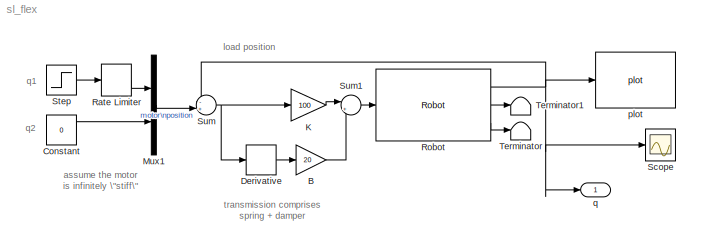
MODEL sl_flex
KIND model
CONFIG PreLoadFcn = twolink
BLOCK [Gain] B
  Gain = 20
  SID = 1
BLOCK [Constant] Constant
  SID = 3
  Value = 0
BLOCK [Derivative] Derivative
  SID = 4
BLOCK [Gain] K
  Gain = 100
  SID = 5
BLOCK [Mux] Mux1
  DisplayOption = bar
  Inputs = 2
  Ports = [2, 1]
  SID = 8
BLOCK [RateLimiter] Rate Limiter
  FallingSlewLimit = -50
  RisingSlewLimit = 50
  SID = 9
BLOCK [Reference] Robot  REF=roblocks/Dynamics/Robot  (lib defined in mdl_2a292b13c81b, mdl_69400f8cfe22, +12 more)
  FunctionWithSeparateData = off
  GeneratePreprocessorConditionals = off
  Ports = [1, 3]
  RTWMemSecDataConstants = Inherit from model
  RTWMemSecDataInternal = Inherit from model
  RTWMemSecDataParameters = Inherit from model
  RTWMemSecFuncExecute = Inherit from model
  RTWMemSecFuncInitTerm = Inherit from model
  SID = 10
  ShowPortLabels = FromPortIcon
  SourceBlock = roblocks/Dynamics/Robot
  SystemSampleTime = -1
  q0 = [0 0]
  robot = twolink
BLOCK [Scope] Scope
  DataFormat = StructureWithTime
  Floating = off
  NumInputPorts = 1
  Ports = [1]
  SID = 11
  SampleTime = 0
  YMax = 1.5
  YMin = -0.5
BLOCK [Step] Step
  SID = 12
  SampleTime = 0
BLOCK [Sum] Sum
  IconShape = round
  Inputs = -+|
  Ports = [2, 1]
  SID = 13
BLOCK [Sum] Sum1
  IconShape = round
  Inputs = |++
  Ports = [2, 1]
  SID = 14
BLOCK [Terminator] Terminator
  SID = 15
BLOCK [Terminator] Terminator1
  SID = 20
BLOCK [Reference] plot  REF=roblocks/Robot Graphics/plot  (lib defined in mdl_2a292b13c81b, mdl_69400f8cfe22, +12 more)
  FunctionWithSeparateData = off
  GeneratePreprocessorConditionals = off
  Ports = [1]
  RTWMemSecDataConstants = Inherit from model
  RTWMemSecDataInternal = Inherit from model
  RTWMemSecDataParameters = Inherit from model
  RTWMemSecFuncExecute = Inherit from model
  RTWMemSecFuncInitTerm = Inherit from model
  SID = 18
  ShowPortLabels = FromPortIcon
  SourceBlock = roblocks/Robot Graphics/plot
  SystemSampleTime = -1
  robot = twolink
BLOCK [Outport] q
  IconDisplay = Port number
  SID = 19
ANNOTATION (root): assume the motor\nis infinitely \"stiff\"
ANNOTATION (root): load position
ANNOTATION (root): q1
ANNOTATION (root): q2
ANNOTATION (root): transmission comprises\nspring + damper
LINE B:1 -> Sum1:2
LINE Constant:1 -> Mux1:2
LINE Derivative:1 -> B:1
LINE K:1 -> Sum1:1
LINE Mux1:1 -> Sum:2
LINE Rate Limiter:1 -> Mux1:1
NET Robot:1 -> Scope:1, Sum:1, plot:1, q:1
LINE Robot:2 -> Terminator1:1
LINE Robot:3 -> Terminator:1
LINE Step:1 -> Rate Limiter:1
LINE Sum1:1 -> Robot:1
NET Sum:1 -> Derivative:1, K:1
note: NET lines group one-source signal fan-out (src -> all destinations, sorted); 1:1 wires keep LINE
